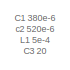
[diagram: root canvas - part 1/3, top right region]
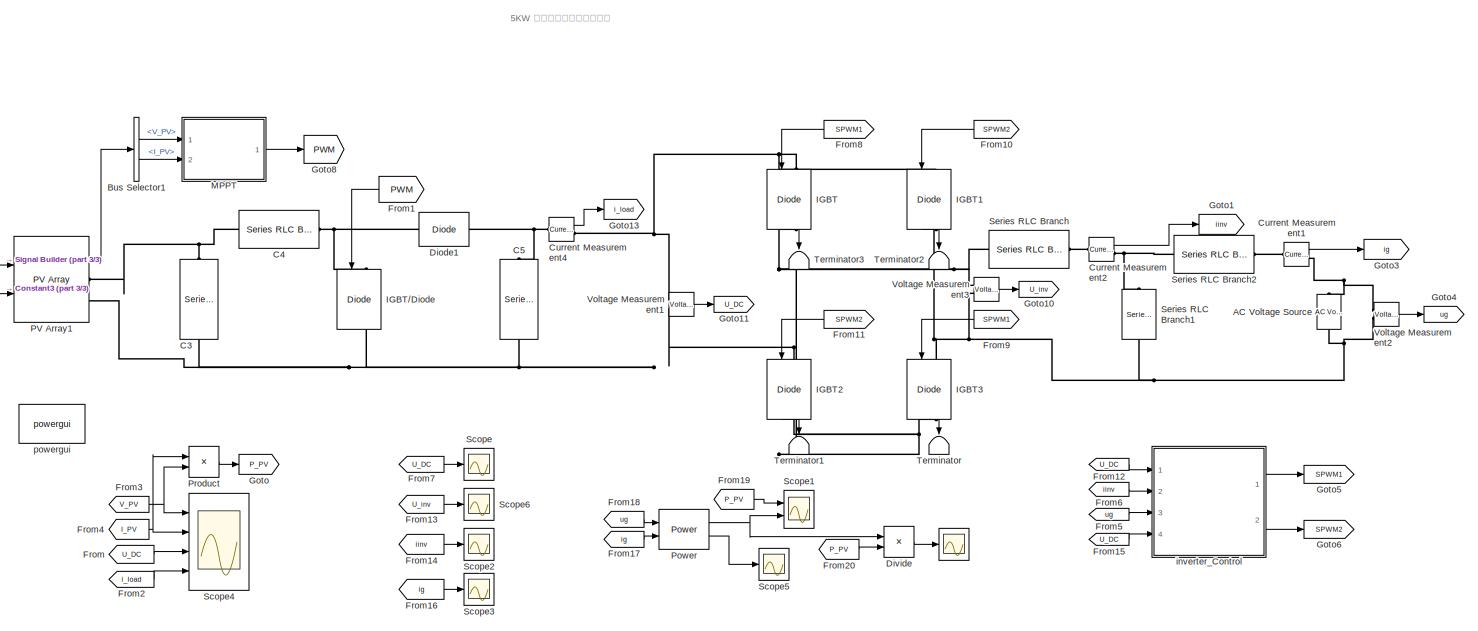
[diagram: root canvas - part 2/3, bottom left region]
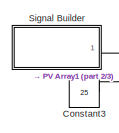
[diagram: root canvas - part 3/3, bottom left region]
MODEL slx_847b525474f7
KIND model
CONFIG AbsTol = auto
CONFIG EnableMultiTasking = off
CONFIG FixedStep = 5e-7
CONFIG MaxStep = 1e-6
CONFIG MinStep = auto
CONFIG RelTol = 1e-3
CONFIG SampleTimeConstraint = Unconstrained
CONFIG SolverName = FixedStepDiscrete
CONFIG StartTime = 0.0
CONFIG StopTime = 6
BLOCK [Scope]  
  Floating = off
  NumInputPorts = 1
  Ports = [1]
  ScopeSpecificationString = Simulink.scopes.TimeScopeBlockCfg('CurrentConfiguration', extmgr.ConfigurationSet(extmgr.Configuration('Core','General UI',true),extmgr.Configuration('Core','Source UI',true),extmgr.Configuration('Sources','WiredSimulink',true,'DataLoggingVariableName','ScopeData7'),extmgr.Configuration('Visuals','Time Domain',true,'SerializedDisplays',{struct('MinYLimReal','0.95184','MaxYLimReal','1.00052','YLabe...<+1407ch>
BLOCK [Reference] AC Voltage Source  REF=powerlib/Electrical
Sources/AC Voltage Source
  NameLocation = right
  Ports = [0, 0, 0, 0, 0, 1, 1]
  SourceBlock = powerlib/Electrical\nSources/AC Voltage Source
  SourceProductBaseCode = PS
  SourceType = AC Voltage Source
BLOCK [BusSelector] Bus Selector1
  OutputSignals = V_PV,I_PV
  Ports = [1, 2]
BLOCK [Reference] C3  REF=powerlib/Elements/Series RLC Branch
  NameLocation = left
  Ports = [0, 0, 0, 0, 0, 1, 1]
  SourceBlock = powerlib/Elements/Series RLC Branch
  SourceProductBaseCode = PS
  SourceType = Series RLC Branch
BLOCK [Reference] C4  REF=powerlib/Elements/Series RLC Branch
  Ports = [0, 0, 0, 0, 0, 1, 1]
  SourceBlock = powerlib/Elements/Series RLC Branch
  SourceProductBaseCode = PS
  SourceType = Series RLC Branch
BLOCK [Reference] C5  REF=powerlib/Elements/Series RLC Branch
  NameLocation = left
  Ports = [0, 0, 0, 0, 0, 1, 1]
  SourceBlock = powerlib/Elements/Series RLC Branch
  SourceProductBaseCode = PS
  SourceType = Series RLC Branch
BLOCK [Constant] Constant3
  Value = 25
BLOCK [Reference] Current Measurement1  REF=powerlib/Measurements/Current Measurement
  NameLocation = top
  Ports = [0, 1, 0, 0, 0, 1, 1]
  SourceBlock = powerlib/Measurements/Current Measurement
  SourceProductBaseCode = PS
  SourceType = Current Measurement
  UserDataPersistent = on
BLOCK [Reference] Current Measurement2  REF=powerlib/Measurements/Current Measurement
  NameLocation = top
  Ports = [0, 1, 0, 0, 0, 1, 1]
  SourceBlock = powerlib/Measurements/Current Measurement
  SourceProductBaseCode = PS
  SourceType = Current Measurement
  UserDataPersistent = on
BLOCK [Reference] Current Measurement4  REF=powerlib/Measurements/Current Measurement
  Ports = [0, 1, 0, 0, 0, 1, 1]
  SourceBlock = powerlib/Measurements/Current Measurement
  SourceProductBaseCode = PS
  SourceType = Current Measurement
  UserDataPersistent = on
BLOCK [Reference] Diode1  REF=powerlib/Power
Electronics/Diode
  Ports = [0, 0, 0, 0, 0, 1, 1]
  SourceBlock = powerlib/Power\nElectronics/Diode
  SourceProductBaseCode = PS
  SourceType = Diode
BLOCK [Product] Divide
  Inputs = */
  Ports = [2, 1]
BLOCK [From] From
  GotoTag = U_DC
BLOCK [From] From1
  GotoTag = PWM
  NameLocation = top
BLOCK [From] From10
  GotoTag = SPWM2
  NameLocation = top
BLOCK [From] From11
  GotoTag = SPWM2
  NameLocation = top
BLOCK [From] From12
  GotoTag = U_DC
BLOCK [From] From13
  GotoTag = U_inv
BLOCK [From] From14
  GotoTag = iinv
BLOCK [From] From15
  GotoTag = U_DC
BLOCK [From] From16
  GotoTag = ig
BLOCK [From] From17
  GotoTag = ig
BLOCK [From] From18
  GotoTag = ug
BLOCK [From] From19
  GotoTag = P_PV
BLOCK [From] From2
  GotoTag = i_load
BLOCK [From] From20
  GotoTag = P_PV
BLOCK [From] From3
  GotoTag = V_PV
  TagVisibility = global
BLOCK [From] From4
  GotoTag = I_PV
  TagVisibility = global
BLOCK [From] From5
  GotoTag = ug
BLOCK [From] From6
  GotoTag = iinv
BLOCK [From] From7
  GotoTag = U_DC
BLOCK [From] From8
  GotoTag = SPWM1
  NameLocation = top
BLOCK [From] From9
  GotoTag = SPWM1
  NameLocation = top
BLOCK [Goto] Goto
  GotoTag = P_PV
BLOCK [Goto] Goto1
  GotoTag = iinv
BLOCK [Goto] Goto10
  GotoTag = U_inv
BLOCK [Goto] Goto11
  GotoTag = U_DC
BLOCK [Goto] Goto13
  GotoTag = i_load
BLOCK [Goto] Goto3
  GotoTag = ig
BLOCK [Goto] Goto4
  GotoTag = ug
BLOCK [Goto] Goto5
  GotoTag = SPWM1
BLOCK [Goto] Goto6
  GotoTag = SPWM2
BLOCK [Goto] Goto8
  GotoTag = PWM
  NameLocation = top
BLOCK [Reference] IGBT  REF=powerlib/Power
Electronics/IGBT//Diode
  NameLocation = left
  Ports = [1, 1, 0, 0, 0, 1, 1]
  SourceBlock = powerlib/Power\nElectronics/IGBT//Diode
  SourceProductBaseCode = PS
  SourceType = IGBT/Diode
BLOCK [Reference] IGBT//Diode  REF=powerlib/Power
Electronics/IGBT//Diode
  NameLocation = left
  Ports = [1, 1, 0, 0, 0, 1, 1]
  SourceBlock = powerlib/Power\nElectronics/IGBT//Diode
  SourceProductBaseCode = PS
  SourceType = IGBT/Diode
BLOCK [Reference] IGBT1  REF=powerlib/Power
Electronics/IGBT//Diode
  NameLocation = left
  Ports = [1, 1, 0, 0, 0, 1, 1]
  SourceBlock = powerlib/Power\nElectronics/IGBT//Diode
  SourceProductBaseCode = PS
  SourceType = IGBT/Diode
BLOCK [Reference] IGBT2  REF=powerlib/Power
Electronics/IGBT//Diode
  NameLocation = left
  Ports = [1, 1, 0, 0, 0, 1, 1]
  SourceBlock = powerlib/Power\nElectronics/IGBT//Diode
  SourceProductBaseCode = PS
  SourceType = IGBT/Diode
BLOCK [Reference] IGBT3  REF=powerlib/Power
Electronics/IGBT//Diode
  NameLocation = left
  Ports = [1, 1, 0, 0, 0, 1, 1]
  SourceBlock = powerlib/Power\nElectronics/IGBT//Diode
  SourceProductBaseCode = PS
  SourceType = IGBT/Diode
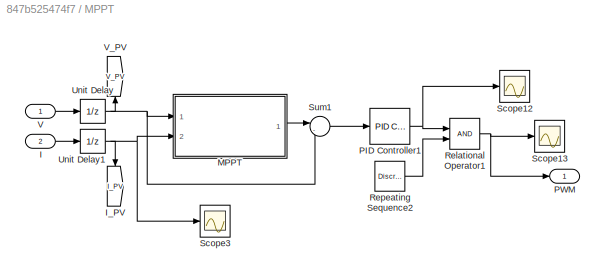
BLOCK [SubSystem] MPPT
  Ports = [2, 1]
  RequestExecContextInheritance = off
BLOCK [Inport] MPPT/I
  Port = 2
BLOCK [Goto] MPPT/I_PV
  GotoTag = I_PV
  NameLocation = left
  TagVisibility = global
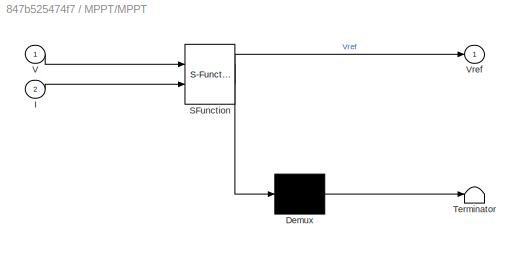
BLOCK [SubSystem] MPPT/MPPT
  ErrorFcn = Stateflow.Translate.translate
  PermitHierarchicalResolution = ExplicitOnly
  Ports = [2, 1]
  RequestExecContextInheritance = off
  SFBlockType = MATLAB Function
  TreatAsAtomicUnit = on
BLOCK [Demux] MPPT/MPPT/ Demux 
  Outputs = 1
  Ports = [1, 1]
BLOCK [S-Function] MPPT/MPPT/ SFunction 
  EnableBusSupport = on
  FunctionName = sf_sfun
  PortCounts = [2 2]
  Ports = [2, 2]
  SFcnIsStateOwnerBlock = off
  SFunctionDeploymentMode = off
  Tag = Stateflow S-Function 2
BLOCK [Terminator] MPPT/MPPT/ Terminator 
BLOCK [Inport] MPPT/MPPT/I
  Port = 2
BLOCK [Inport] MPPT/MPPT/V
BLOCK [Outport] MPPT/MPPT/Vref
BLOCK [Reference] MPPT/PID Controller1  REF=pid_lib/PID Controller
  Ports = [1, 1]
  SourceBlock = pid_lib/PID Controller
  SourceProductBaseCode = SL
  SourceType = PID 1dof
BLOCK [Outport] MPPT/PWM
BLOCK [RelationalOperator] MPPT/Relational Operator1
  InputSameDT = off
  OutDataTypeStr = boolean
  Ports = [2, 1]
  RndMeth = Simplest
BLOCK [Reference] MPPT/Repeating Sequence2  REF=discretizing/Discretized  (lib defined in mdl_5048aa1cd587)
Repeating Sequence
  Ports = [0, 1]
  SourceBlock = discretizing/Discretized\nRepeating Sequence
  SourceProductBaseCode = SL
  SourceType = DiscretizedRepeatingTable
BLOCK [Scope] MPPT/Scope12
  Floating = off
  NumInputPorts = 1
  Ports = [1]
  ScopeSpecificationString = Simulink.scopes.TimeScopeBlockCfg('CurrentConfiguration', extmgr.ConfigurationSet(extmgr.Configuration('Core','General UI',true),extmgr.Configuration('Core','Source UI',true),extmgr.Configuration('Sources','WiredSimulink',true,'DataLoggingVariableName','ScopeData2'),extmgr.Configuration('Visuals','Time Domain',true,'SerializedDisplays',{struct('MinYLimReal','-1.29806','MaxYLimReal','0.6244','YLabe...<+1446ch>
BLOCK [Scope] MPPT/Scope13
  Floating = off
  NumInputPorts = 1
  Ports = [1]
  ScopeSpecificationString = Simulink.scopes.TimeScopeBlockCfg('CurrentConfiguration', extmgr.ConfigurationSet(extmgr.Configuration('Core','General UI',true),extmgr.Configuration('Core','Source UI',true),extmgr.Configuration('Sources','WiredSimulink',true,'DataLoggingVariableName','ScopeData3'),extmgr.Configuration('Visuals','Time Domain',true,'SerializedDisplays',{struct('MinYLimReal','-0.05828','MaxYLimReal','1.125','YLabel...<+1414ch>
BLOCK [Scope] MPPT/Scope3
  Floating = off
  NumInputPorts = 1
  Ports = [1]
  ScopeSpecificationString = Simulink.scopes.TimeScopeBlockCfg('CurrentConfiguration', extmgr.ConfigurationSet(extmgr.Configuration('Core','General UI',true),extmgr.Configuration('Core','Source UI',true),extmgr.Configuration('Sources','WiredSimulink',true,'DataLoggingVariableName','ScopeData5'),extmgr.Configuration('Visuals','Time Domain',true,'SerializedDisplays',{struct('MinYLimReal','13.90245','MaxYLimReal','15.24213','YLa...<+1420ch>
BLOCK [Sum] MPPT/Sum1
  Inputs = |-+
  Ports = [2, 1]
BLOCK [UnitDelay] MPPT/Unit Delay
  HasFrameUpgradeWarning = on
  SampleTime = 1e-5
BLOCK [UnitDelay] MPPT/Unit Delay1
  HasFrameUpgradeWarning = on
  SampleTime = 1e-5
BLOCK [Inport] MPPT/V
BLOCK [Goto] MPPT/V_PV
  GotoTag = V_PV
  NameLocation = right
  TagVisibility = global
BLOCK [Reference] PV Array1  REF=re_lib/Solar/PV Array
  Ports = [2, 1, 0, 0, 0, 0, 2]
  SourceBlock = re_lib/Solar/PV Array
  SourceProductBaseCode = PS
  SourceType = PV array
BLOCK [Reference] Power  REF=powerlib_meascontrol/Measurements/Power
  Ports = [2, 2]
  SourceBlock = powerlib_meascontrol/Measurements/Power
  SourceProductBaseCode = PS
  SourceType = Power
BLOCK [Product] Product
  Ports = [2, 1]
BLOCK [Scope] Scope
  Floating = off
  NumInputPorts = 1
  Ports = [1]
  ScopeSpecificationString = Simulink.scopes.TimeScopeBlockCfg('CurrentConfiguration', extmgr.ConfigurationSet(extmgr.Configuration('Core','General UI',true),extmgr.Configuration('Core','Source UI',true),extmgr.Configuration('Sources','WiredSimulink',true,'DataLoggingVariableName','ScopeData1','DataLogging',true),extmgr.Configuration('Visuals','Time Domain',true,'SerializedDisplays',{struct('MinYLimReal','-53.98098','MaxYLimR...<+1481ch>
BLOCK [Scope] Scope1
  Floating = off
  NumInputPorts = 2
  Ports = [2]
  ScopeSpecificationString = Simulink.scopes.TimeScopeBlockCfg('CurrentConfiguration', extmgr.ConfigurationSet(extmgr.Configuration('Core','General UI',true),extmgr.Configuration('Core','Source UI',true),extmgr.Configuration('Sources','WiredSimulink',true,'DataLoggingVariableName','ScopeData4'),extmgr.Configuration('Visuals','Time Domain',true,'SerializedDisplays',{struct('MinYLimReal','3023.40922','MaxYLimReal','3119.7574','...<+1438ch>
BLOCK [Scope] Scope2
  Floating = off
  NumInputPorts = 1
  Ports = [1]
  ScopeSpecificationString = Simulink.scopes.TimeScopeBlockCfg('CurrentConfiguration', extmgr.ConfigurationSet(extmgr.Configuration('Core','General UI',true),extmgr.Configuration('Core','Source UI',true),extmgr.Configuration('Sources','WiredSimulink',true,'DataLoggingVariableName','Uinv1','DataLogging',true),extmgr.Configuration('Visuals','Time Domain',true,'SerializedDisplays',{struct('MinYLimReal','329.48065','MaxYLimReal',...<+1482ch>
BLOCK [Scope] Scope3
  Floating = off
  NumInputPorts = 1
  Ports = [1]
  ScopeSpecificationString = Simulink.scopes.TimeScopeBlockCfg('CurrentConfiguration', extmgr.ConfigurationSet(extmgr.Configuration('Core','General UI',true),extmgr.Configuration('Core','Source UI',true),extmgr.Configuration('Sources','WiredSimulink',true,'DataLoggingVariableName','ig1','DataLogging',true),extmgr.Configuration('Visuals','Time Domain',true,'SerializedDisplays',{struct('MinYLimReal','-38.04352','MaxYLimReal','5...<+1474ch>
BLOCK [Scope] Scope4
  Floating = off
  NumInputPorts = 4
  Ports = [4]
  ScopeSpecificationString = Simulink.scopes.TimeScopeBlockCfg('CurrentConfiguration', extmgr.ConfigurationSet(extmgr.Configuration('Core','General UI',true),extmgr.Configuration('Core','Source UI',true),extmgr.Configuration('Sources','WiredSimulink',true,'DataLoggingVariableName','ScopeData1'),extmgr.Configuration('Visuals','Time Domain',true,'SerializedDisplays',{struct('MinYLimReal','-1.00000','MaxYLimReal','1.00000','YLab...<+3470ch>
BLOCK [Scope] Scope5
  Floating = off
  NumInputPorts = 1
  Ports = [1]
  ScopeSpecificationString = Simulink.scopes.TimeScopeBlockCfg('CurrentConfiguration', extmgr.ConfigurationSet(extmgr.Configuration('Core','General UI',true),extmgr.Configuration('Core','Source UI',true),extmgr.Configuration('Sources','WiredSimulink',true,'DataLoggingVariableName','ScopeData6'),extmgr.Configuration('Visuals','Time Domain',true,'SerializedDisplays',{struct('MinYLimReal','-3534.40113','MaxYLimReal','1193.69051'...<+1432ch>
BLOCK [Scope] Scope6
  Floating = off
  NumInputPorts = 1
  Ports = [1]
  ScopeSpecificationString = Simulink.scopes.TimeScopeBlockCfg('CurrentConfiguration', extmgr.ConfigurationSet(extmgr.Configuration('Core','General UI',true),extmgr.Configuration('Core','Source UI',true),extmgr.Configuration('Sources','WiredSimulink',true,'DataLoggingVariableName','Uinv','DataLogging',true),extmgr.Configuration('Visuals','Time Domain',true,'SerializedDisplays',{struct('MinYLimReal','-404.16057','MaxYLimReal',...<+1481ch>
BLOCK [Reference] Series RLC Branch  REF=powerlib/Elements/Series RLC Branch
  Ports = [0, 0, 0, 0, 0, 1, 1]
  SourceBlock = powerlib/Elements/Series RLC Branch
  SourceProductBaseCode = PS
  SourceType = Series RLC Branch
BLOCK [Reference] Series RLC Branch1  REF=powerlib/Elements/Series RLC Branch
  NameLocation = left
  Ports = [0, 0, 0, 0, 0, 1, 1]
  SourceBlock = powerlib/Elements/Series RLC Branch
  SourceProductBaseCode = PS
  SourceType = Series RLC Branch
BLOCK [Reference] Series RLC Branch2  REF=powerlib/Elements/Series RLC Branch
  Ports = [0, 0, 0, 0, 0, 1, 1]
  SourceBlock = powerlib/Elements/Series RLC Branch
  SourceProductBaseCode = PS
  SourceType = Series RLC Branch
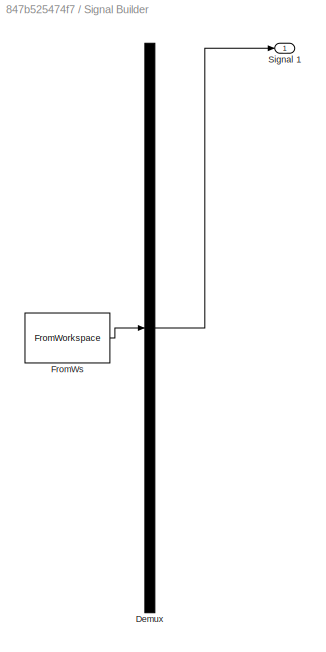
BLOCK [SubSystem] Signal Builder
  ClipboardFcn = sigbuilder_block('clipboard');
  CloseFcn = sigbuilder_block('close');
  ContinueFcn = sigbuilder_block('continue');
  CopyFcn = sigbuilder_block('copy');
  DeleteFcn = sigbuilder_block('delete');
  LoadFcn = sigbuilder_block('load');
  MaskHideContents = on
  ModelCloseFcn = sigbuilder_block('modelClose');
  NameChangeFcn = sigbuilder_block('namechange');
  OpenFcn = sigbuilder_block('open',[437.6 199.2 550.4 400 ]);
  PauseFcn = sigbuilder_block('pause');
  Ports = [0, 1]
  PreSaveFcn = sigbuilder_block('preSave');
  RequestExecContextInheritance = off
  StartFcn = sigbuilder_block('start');
  StopFcn = sigbuilder_block('stop');
  Tag = STV Subsys
BLOCK [Demux] Signal Builder/Demux
  DisplayOption = none
  Outputs = 1
  Ports = [1, 1]
  Tag = STV Demux
BLOCK [FromWorkspace] Signal Builder/FromWs
  Tag = STV FromWs
  VariableName = tuvar
BLOCK [Outport] Signal Builder/Signal 1
  Tag = STV Outport
BLOCK [Terminator] Terminator
  NameLocation = left
BLOCK [Terminator] Terminator1
  NameLocation = left
BLOCK [Terminator] Terminator2
  NameLocation = left
BLOCK [Terminator] Terminator3
  NameLocation = left
BLOCK [Reference] Voltage Measurement1  REF=powerlib/Measurements/Voltage Measurement
  Ports = [0, 1, 0, 0, 0, 2]
  SourceBlock = powerlib/Measurements/Voltage Measurement
  SourceProductBaseCode = PS
  SourceType = Voltage Measurement
  UserDataPersistent = on
BLOCK [Reference] Voltage Measurement2  REF=powerlib/Measurements/Voltage Measurement
  Ports = [0, 1, 0, 0, 0, 2]
  SourceBlock = powerlib/Measurements/Voltage Measurement
  SourceProductBaseCode = PS
  SourceType = Voltage Measurement
  UserDataPersistent = on
BLOCK [Reference] Voltage Measurement3  REF=powerlib/Measurements/Voltage Measurement
  Ports = [0, 1, 0, 0, 0, 2]
  SourceBlock = powerlib/Measurements/Voltage Measurement
  SourceProductBaseCode = PS
  SourceType = Voltage Measurement
  UserDataPersistent = on
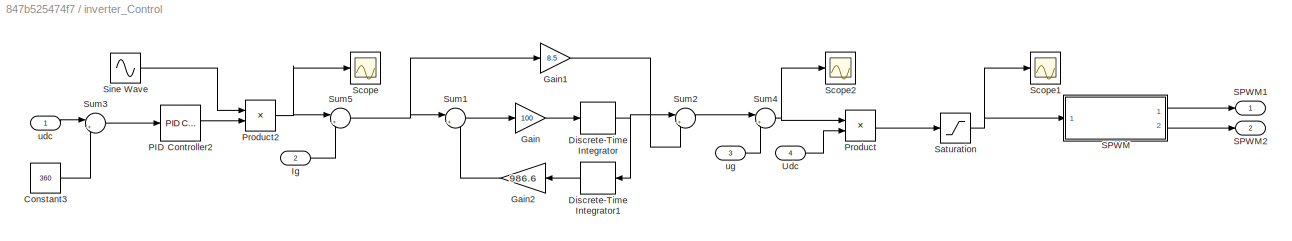
BLOCK [SubSystem] inverter_Control
  Ports = [4, 2]
  RequestExecContextInheritance = off
BLOCK [Constant] inverter_Control/Constant3
  Value = 360
BLOCK [DiscreteIntegrator] inverter_Control/Discrete-Time Integrator
  ICPrevOutput = DiscIntNeverNeededParam
  ICPrevScaledInput = DiscIntNeverNeededParam
  InitialConditionSetting = Auto
  Ports = [1, 1]
  SampleTime = -1
BLOCK [DiscreteIntegrator] inverter_Control/Discrete-Time Integrator1
  ICPrevOutput = DiscIntNeverNeededParam
  ICPrevScaledInput = DiscIntNeverNeededParam
  InitialConditionSetting = Auto
  NameLocation = top
  Ports = [1, 1]
  SampleTime = -1
BLOCK [Gain] inverter_Control/Gain
  Gain = 100
BLOCK [Gain] inverter_Control/Gain1
  Gain = 8.5
BLOCK [Gain] inverter_Control/Gain2
  Gain = 986.6
  NameLocation = top
BLOCK [Inport] inverter_Control/Ig
  Port = 2
BLOCK [Reference] inverter_Control/PID Controller2  REF=pid_lib/PID Controller
  Ports = [1, 1]
  SourceBlock = pid_lib/PID Controller
  SourceProductBaseCode = SL
  SourceType = PID 1dof
BLOCK [Product] inverter_Control/Product
  Inputs = */
  Ports = [2, 1]
BLOCK [Product] inverter_Control/Product2
  Ports = [2, 1]
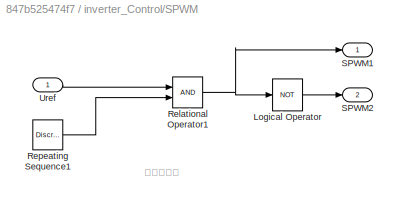
BLOCK [SubSystem] inverter_Control/SPWM
  Ports = [1, 2]
  RequestExecContextInheritance = off
BLOCK [Logic] inverter_Control/SPWM/Logical Operator
  AllPortsSameDT = off
  Operator = NOT
  OutDataTypeStr = boolean
  Ports = [1, 1]
BLOCK [RelationalOperator] inverter_Control/SPWM/Relational Operator1
  InputSameDT = off
  OutDataTypeStr = boolean
  Ports = [2, 1]
  RndMeth = Simplest
BLOCK [Reference] inverter_Control/SPWM/Repeating Sequence1  REF=discretizing/Discretized  (lib defined in mdl_5048aa1cd587)
Repeating Sequence
  Ports = [0, 1]
  SourceBlock = discretizing/Discretized\nRepeating Sequence
  SourceProductBaseCode = SL
  SourceType = DiscretizedRepeatingTable
BLOCK [Outport] inverter_Control/SPWM/SPWM1
BLOCK [Outport] inverter_Control/SPWM/SPWM2
  Port = 2
BLOCK [Inport] inverter_Control/SPWM/Uref
BLOCK [Outport] inverter_Control/SPWM1
BLOCK [Outport] inverter_Control/SPWM2
  Port = 2
BLOCK [Saturate] inverter_Control/Saturation
  LowerLimit = -1
  UpperLimit = 1
BLOCK [Scope] inverter_Control/Scope
  Floating = off
  NumInputPorts = 1
  Ports = [1]
  ScopeSpecificationString = Simulink.scopes.TimeScopeBlockCfg('CurrentConfiguration', extmgr.ConfigurationSet(extmgr.Configuration('Core','General UI',true),extmgr.Configuration('Core','Source UI',true),extmgr.Configuration('Sources','WiredSimulink',true,'DataLoggingVariableName','ScopeData3'),extmgr.Configuration('Visuals','Time Domain',true,'SerializedDisplays',{struct('MinYLimReal','-33.70398','MaxYLimReal','62.73833','YL...<+1392ch>
BLOCK [Scope] inverter_Control/Scope1
  Floating = off
  NumInputPorts = 1
  Ports = [1]
  ScopeSpecificationString = Simulink.scopes.TimeScopeBlockCfg('CurrentConfiguration', extmgr.ConfigurationSet(extmgr.Configuration('Core','General UI',true),extmgr.Configuration('Core','Source UI',true),extmgr.Configuration('Sources','WiredSimulink',true,'DataLoggingVariableName','ScopeData4'),extmgr.Configuration('Visuals','Time Domain',true,'SerializedDisplays',{struct('MinYLimReal','-0.89219','MaxYLimReal','1.25','YLabelR...<+1434ch>
BLOCK [Scope] inverter_Control/Scope2
  Floating = off
  NumInputPorts = 1
  Ports = [1]
  ScopeSpecificationString = Simulink.scopes.TimeScopeBlockCfg('CurrentConfiguration', extmgr.ConfigurationSet(extmgr.Configuration('Core','General UI',true),extmgr.Configuration('Core','Source UI',true),extmgr.Configuration('Sources','WiredSimulink',true,'DataLoggingVariableName','ScopeData5'),extmgr.Configuration('Visuals','Time Domain',true,'SerializedDisplays',{struct('MinYLimReal','-366.48631','MaxYLimReal','469.42213','...<+1453ch>
BLOCK [Sin] inverter_Control/Sine Wave
  Frequency = 100*pi
  Ports = [0, 1]
  SampleTime = 0
BLOCK [Sum] inverter_Control/Sum1
  Inputs = |+-
  Ports = [2, 1]
BLOCK [Sum] inverter_Control/Sum2
  Inputs = |++
  Ports = [2, 1]
BLOCK [Sum] inverter_Control/Sum3
  Inputs = |+-
  Ports = [2, 1]
BLOCK [Sum] inverter_Control/Sum4
  Inputs = |++
  Ports = [2, 1]
BLOCK [Sum] inverter_Control/Sum5
  Inputs = |+-
  Ports = [2, 1]
BLOCK [Inport] inverter_Control/Udc
  Port = 4
BLOCK [Inport] inverter_Control/udc
BLOCK [Inport] inverter_Control/ug
  Port = 3
BLOCK [Reference] powergui  REF=powerlib/powergui
  Ports = []
  Priority = 1
  SourceBlock = powerlib/powergui
  SourceProductBaseCode = PS
  SourceType = PSB option menu block
ANNOTATION (root): 5KW 小型单相光伏并网逆变器
ANNOTATION (root): C1 380e-6 c2 520e-6 L1 5e-4 C3 20
ANNOTATION inverter_Control/SPWM: 双极性调制
LINE Bus Selector1:1 -> MPPT:1
LINE Bus Selector1:2 -> MPPT:2
LINE Constant3:1 -> PV Array1:2
LINE Current Measurement1:1 -> Goto3:1
LINE Current Measurement2:1 -> Goto1:1
LINE Current Measurement4:1 -> Goto13:1
LINE Divide:1 ->  :1
LINE From10:1 -> IGBT1:1
LINE From11:1 -> IGBT2:1
LINE From12:1 -> inverter_Control:1
LINE From13:1 -> Scope6:1
LINE From14:1 -> Scope2:1
LINE From15:1 -> inverter_Control:4
LINE From16:1 -> Scope3:1
LINE From17:1 -> Power:2
LINE From18:1 -> Power:1
LINE From19:1 -> Scope1:1
LINE From1:1 -> IGBT//Diode:1
LINE From20:1 -> Divide:2
LINE From2:1 -> Scope4:4
NET From3:1 -> Product:2, Scope4:1
NET From4:1 -> Product:1, Scope4:2
LINE From5:1 -> inverter_Control:3
LINE From6:1 -> inverter_Control:2
LINE From7:1 -> Scope:1
LINE From8:1 -> IGBT:1
LINE From9:1 -> IGBT3:1
LINE From:1 -> Scope4:3
LINE IGBT1:1 -> Terminator2:1
LINE IGBT2:1 -> Terminator1:1
LINE IGBT3:1 -> Terminator:1
LINE IGBT:1 -> Terminator3:1
LINE MPPT/I:1 -> MPPT/Unit Delay1:1
LINE MPPT/MPPT:1 -> MPPT/Sum1:1
NET MPPT/PID Controller1:1 -> MPPT/Relational Operator1:1, MPPT/Scope12:1
NET MPPT/Relational Operator1:1 -> MPPT/PWM:1, MPPT/Scope13:1
LINE MPPT/Repeating Sequence2:1 -> MPPT/Relational Operator1:2
LINE MPPT/Sum1:1 -> MPPT/PID Controller1:1
NET MPPT/Unit Delay1:1 -> MPPT/I_PV:1, MPPT/MPPT:2, MPPT/Scope3:1
NET MPPT/Unit Delay:1 -> MPPT/MPPT:1, MPPT/Sum1:2, MPPT/V_PV:1
LINE MPPT/V:1 -> MPPT/Unit Delay:1
LINE MPPT:1 -> Goto8:1
LINE PV Array1:1 -> Bus Selector1:1
NET Power:1 -> Divide:1, Scope1:2
LINE Power:2 -> Scope5:1
LINE Product:1 -> Goto:1
LINE Signal Builder:1 -> PV Array1:1
LINE Voltage Measurement1:1 -> Goto11:1
LINE Voltage Measurement2:1 -> Goto4:1
LINE Voltage Measurement3:1 -> Goto10:1
LINE inverter_Control/Constant3:1 -> inverter_Control/Sum3:2
LINE inverter_Control/Discrete-Time Integrator1:1 -> inverter_Control/Gain2:1
NET inverter_Control/Discrete-Time Integrator:1 -> inverter_Control/Discrete-Time Integrator1:1, inverter_Control/Sum2:1
LINE inverter_Control/Gain1:1 -> inverter_Control/Sum2:2
LINE inverter_Control/Gain2:1 -> inverter_Control/Sum1:2
LINE inverter_Control/Gain:1 -> inverter_Control/Discrete-Time Integrator:1
LINE inverter_Control/Ig:1 -> inverter_Control/Sum5:2
LINE inverter_Control/PID Controller2:1 -> inverter_Control/Product2:2
NET inverter_Control/Product2:1 -> inverter_Control/Scope:1, inverter_Control/Sum5:1
LINE inverter_Control/Product:1 -> inverter_Control/Saturation:1
LINE inverter_Control/SPWM/Logical Operator:1 -> inverter_Control/SPWM/SPWM2:1
NET inverter_Control/SPWM/Relational Operator1:1 -> inverter_Control/SPWM/Logical Operator:1, inverter_Control/SPWM/SPWM1:1
LINE inverter_Control/SPWM/Repeating Sequence1:1 -> inverter_Control/SPWM/Relational Operator1:2
LINE inverter_Control/SPWM/Uref:1 -> inverter_Control/SPWM/Relational Operator1:1
LINE inverter_Control/SPWM:1 -> inverter_Control/SPWM1:1
LINE inverter_Control/SPWM:2 -> inverter_Control/SPWM2:1
NET inverter_Control/Saturation:1 -> inverter_Control/SPWM:1, inverter_Control/Scope1:1
LINE inverter_Control/Sine Wave:1 -> inverter_Control/Product2:1
LINE inverter_Control/Sum1:1 -> inverter_Control/Gain:1
LINE inverter_Control/Sum2:1 -> inverter_Control/Sum4:1
LINE inverter_Control/Sum3:1 -> inverter_Control/PID Controller2:1
NET inverter_Control/Sum4:1 -> inverter_Control/Product:1, inverter_Control/Scope2:1
NET inverter_Control/Sum5:1 -> inverter_Control/Gain1:1, inverter_Control/Sum1:1
LINE inverter_Control/Udc:1 -> inverter_Control/Product:2
LINE inverter_Control/udc:1 -> inverter_Control/Sum3:1
LINE inverter_Control/ug:1 -> inverter_Control/Sum4:2
LINE inverter_Control:1 -> Goto5:1
LINE inverter_Control:2 -> Goto6:1
PNET net1: AC Voltage Source:LConn1 -- IGBT1:RConn1 -- IGBT3:LConn1 -- Series RLC Branch1:RConn1 -- Voltage Measurement2:LConn2 -- Voltage Measurement3:LConn2
PNET net2: AC Voltage Source:RConn1 -- Current Measurement1:RConn1 -- Voltage Measurement2:LConn1
PNET net3: C3:LConn1 -- C4:LConn1 -- PV Array1:RConn1
PNET net4: C3:RConn1 -- C5:RConn1 -- IGBT//Diode:RConn1 -- IGBT2:RConn1 -- IGBT3:RConn1 -- PV Array1:RConn2 -- Voltage Measurement1:LConn2
PNET net5: C4:RConn1 -- Diode1:LConn1 -- IGBT//Diode:LConn1
PNET net6: C5:LConn1 -- Current Measurement4:LConn1 -- Diode1:RConn1
PLINE Current Measurement1:LConn1 -- Series RLC Branch2:RConn1
PLINE Current Measurement2:LConn1 -- Series RLC Branch:RConn1
PNET net7: Current Measurement2:RConn1 -- Series RLC Branch1:LConn1 -- Series RLC Branch2:LConn1
PNET net8: Current Measurement4:RConn1 -- IGBT1:LConn1 -- IGBT:LConn1 -- Voltage Measurement1:LConn1
PNET net9: IGBT2:LConn1 -- IGBT:RConn1 -- Series RLC Branch:LConn1 -- Voltage Measurement3:LConn1
note: NET lines group one-source signal fan-out (src -> all destinations, sorted); 1:1 wires keep LINE; PNET lines group multi-terminal physical nets as a canonical sorted terminal list (undirected conserving connections); 2-terminal nets keep the pairwise PLINE form
CHART MPPT/MPPT states=1 transitions=1
  STATE_LABEL 'eML_blk_kernel()'
  STATE_LABEL "SCRIPT:\nfunction Vref = MPPT_algorithm_V(V,I)\nVrefmax = 300;\nVrefmin = 0;\nVrefinit = 200;\ndeltaVref = 0.002;\npersistent Vold Pold Vrefold;\ndataType = 'double';\nif isempty(Vold)\n    Vold = 0;\n    Pold = 0;\n    Vrefold = Vrefinit;\nend\nP = V*I;\ndV = V - Vold;\ndP = P - Pold;\n\nif dP~= 0\n    if dP<0\n        if dV<0\n            Vref = Vrefold + deltaVref;\n        else\n            Vref = Vrefold - deltaVr...<+281ch>"
CHART  states=0 transitions=0
